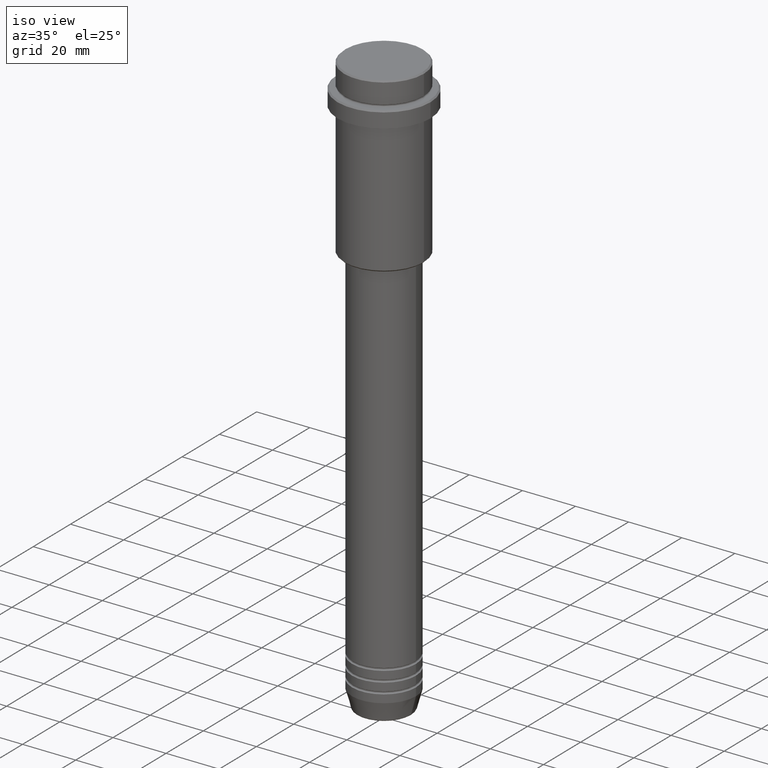
[diagram: clean part render]
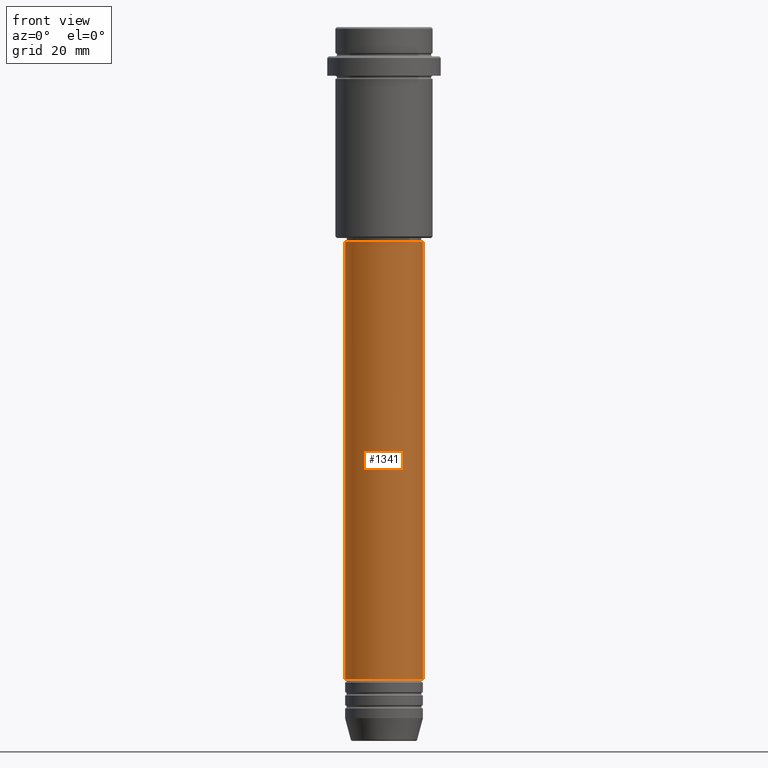
[diagram: tour spotlight — one face highlighted and labeled with its STEP entity id]
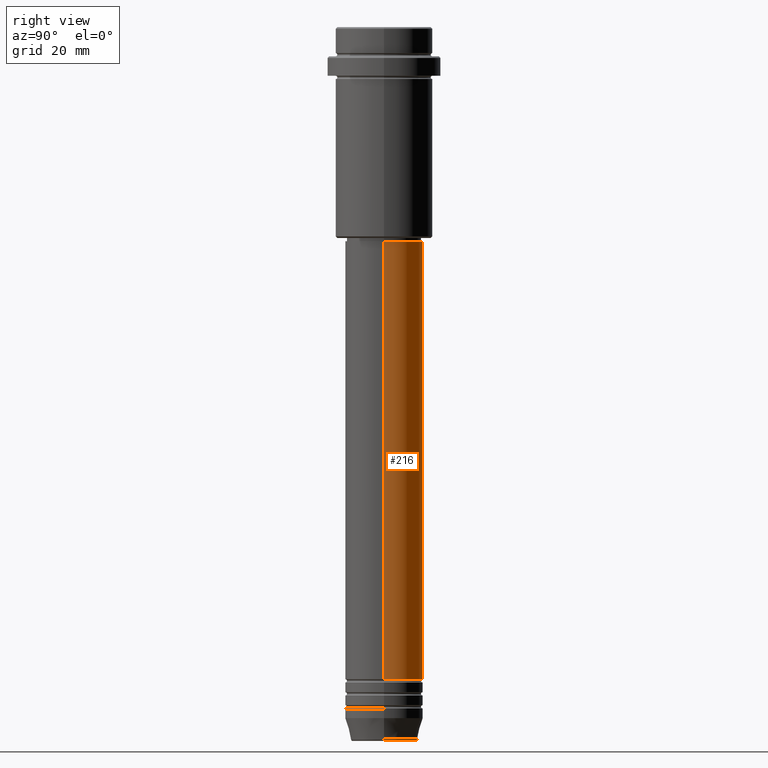
[diagram: tour spotlight — one face highlighted and labeled with its STEP entity id]
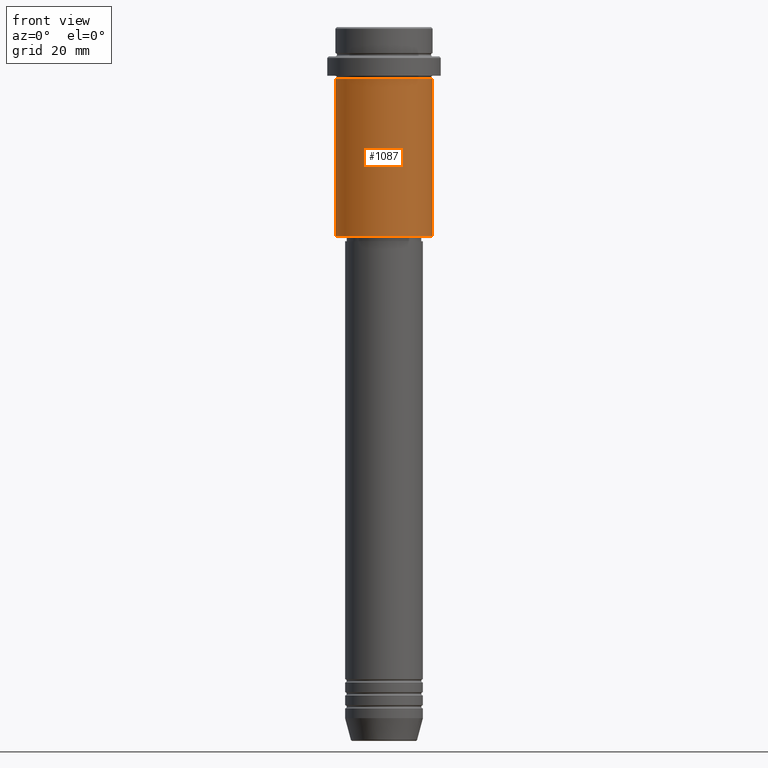
[diagram: tour spotlight — one face highlighted and labeled with its STEP entity id]
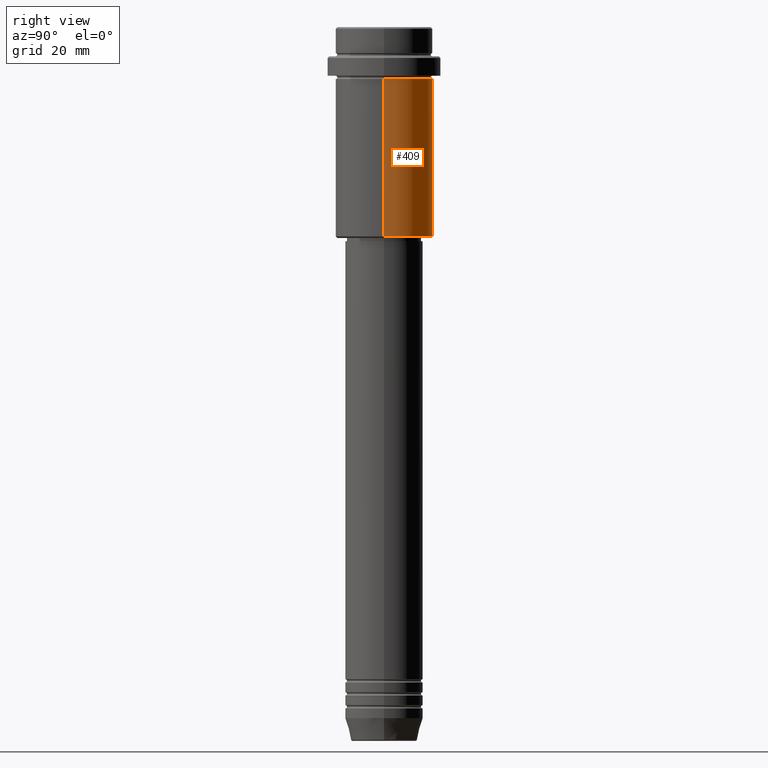
[diagram: tour spotlight — one face highlighted and labeled with its STEP entity id]
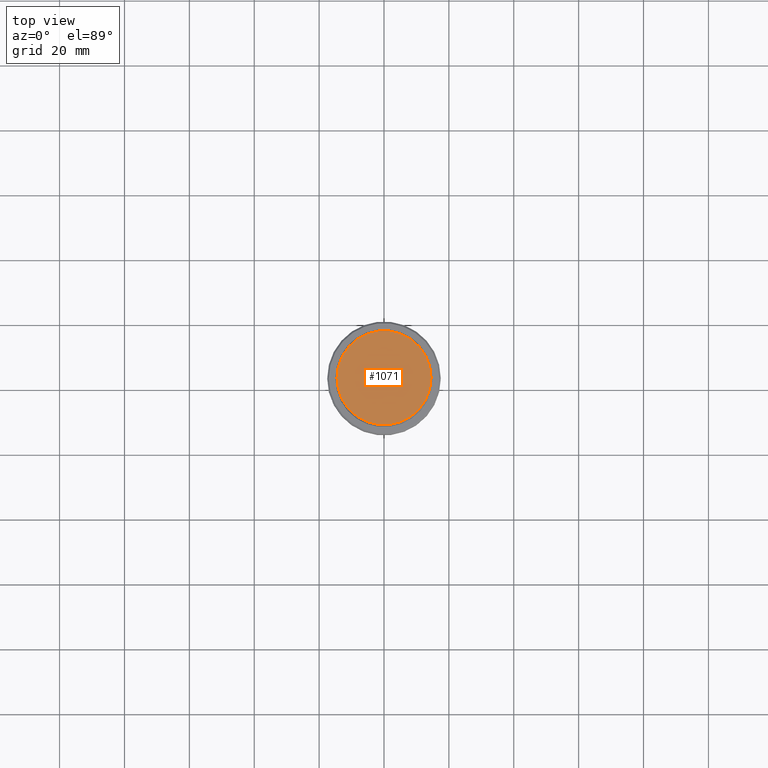
[diagram: tour spotlight — one face highlighted and labeled with its STEP entity id]
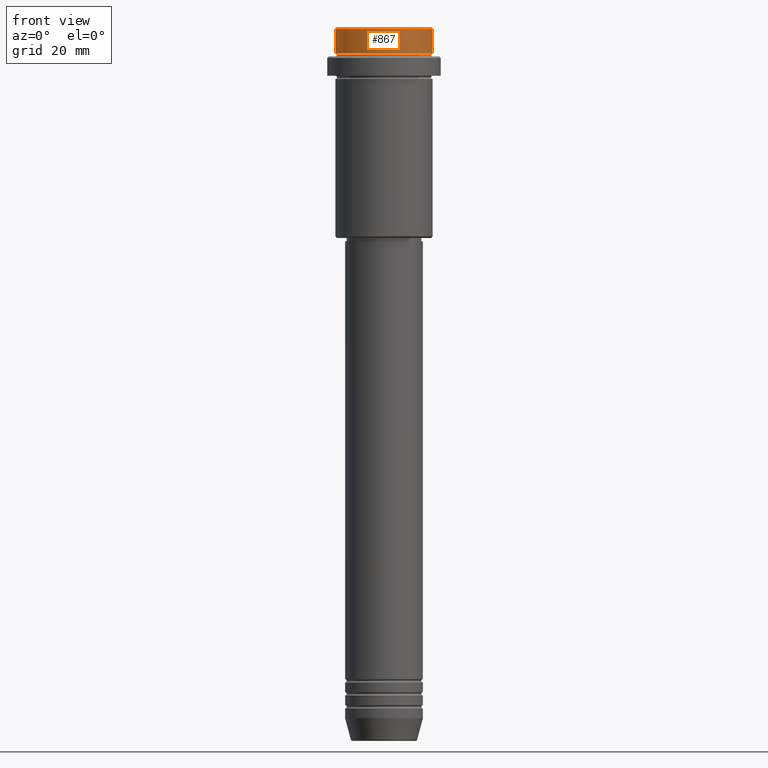
[diagram: tour spotlight — one face highlighted and labeled with its STEP entity id]
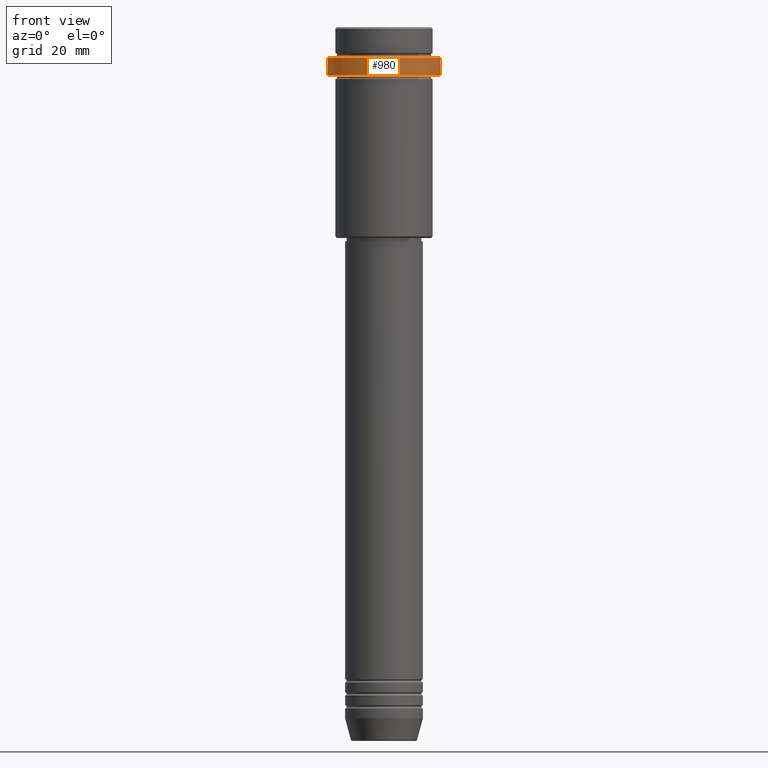
[diagram: tour spotlight — one face highlighted and labeled with its STEP entity id]
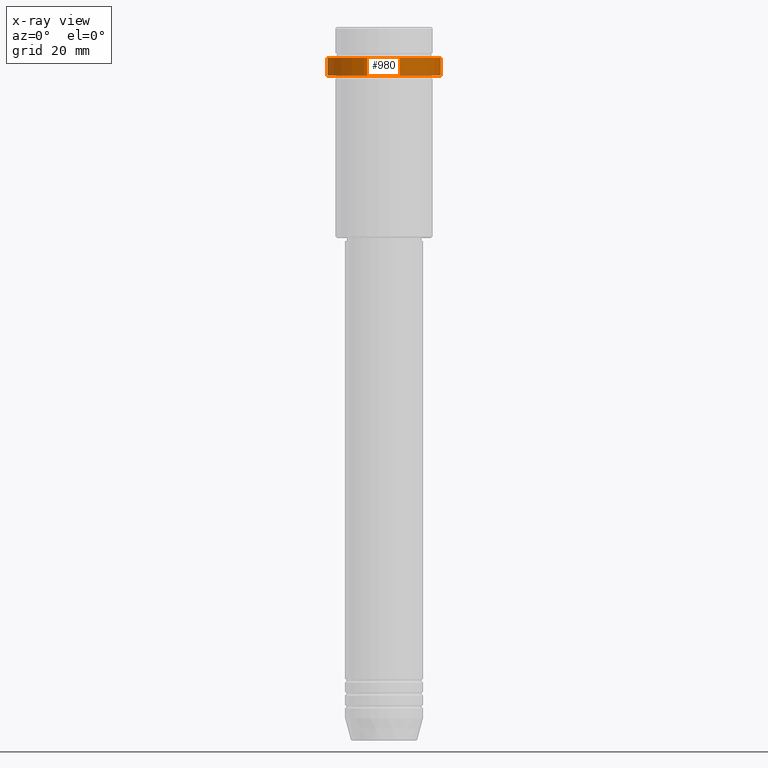
[diagram: x-ray of the same camera — body ghosted, this tour face saturated]
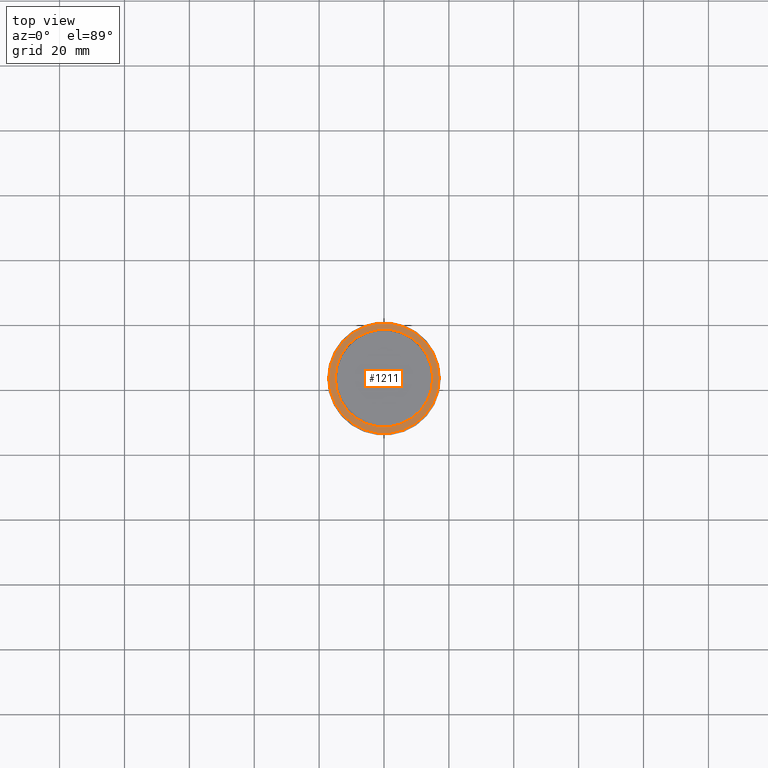
[diagram: tour spotlight — one face highlighted and labeled with its STEP entity id]
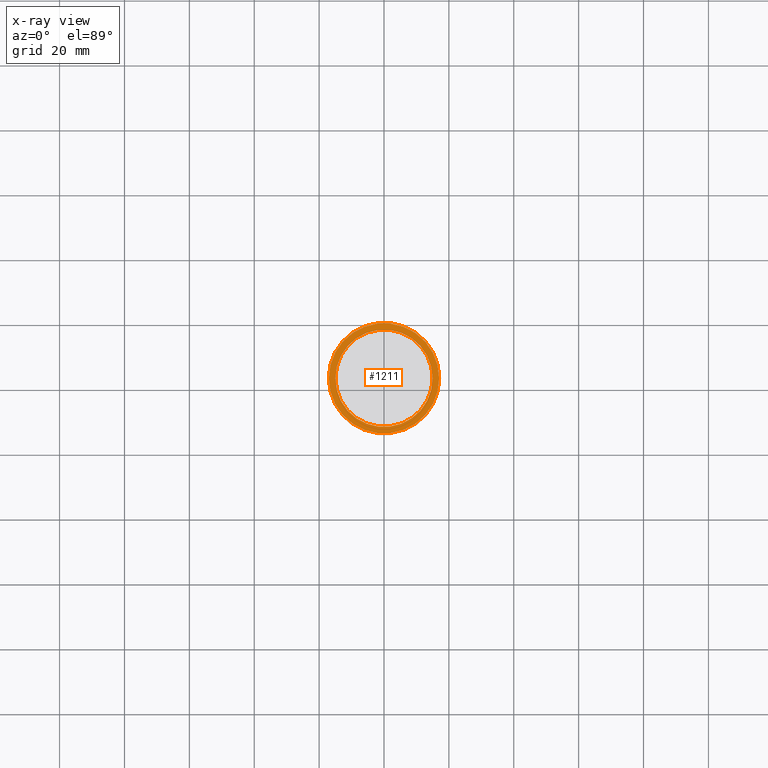
[diagram: x-ray of the same camera — body ghosted, this tour face saturated]
A machine part: a face-by-face anatomy tour. The part has 52 B-rep faces; the first image is the clean iso view, then the 8 largest visible faces are spotlighted one at a time (largest first), each with its STEP entity span.

Face 1 — front view, entity #1341. In plain terms, the highlighted cylindrical surface (partial cylindrical patch) has radius 12 mm, axis along (-0, -0, 1).
Definition (entity closure, byte-faithful):
#27 = VECTOR ( 'NONE', #661, 1000.000000000000000 ) ;
#45 = VERTEX_POINT ( 'NONE', #463 ) ;
#224 = CIRCLE ( 'NONE', #1009, 11.99999999999999822 ) ;
#270 = VERTEX_POINT ( 'NONE', #1295 ) ;
#314 = EDGE_CURVE ( 'NONE', #1225, #270, #756, .T. ) ;
#368 = FACE_OUTER_BOUND ( 'NONE', #827, .T. ) ;
#375 = DIRECTION ( 'NONE',  ( -0.000000000000000000, -0.000000000000000000, 1.000000000000000000 ) ) ;
#439 = CARTESIAN_POINT ( 'NONE',  ( 11.99999999999999822, 0.000000000000000000, -66.00000000000000000 ) ) ;
#443 = ORIENTED_EDGE ( 'NONE', *, *, #622, .T. ) ;
#463 = CARTESIAN_POINT ( 'NONE',  ( 12.00000000000000000, 0.000000000000000000, -200.9999999999999147 ) ) ;
#481 = DIRECTION ( 'NONE',  ( -0.000000000000000000, -0.000000000000000000, 1.000000000000000000 ) ) ;
#507 = DIRECTION ( 'NONE',  ( 1.000000000000000000, 0.000000000000000000, 0.000000000000000000 ) ) ;
#529 = VECTOR ( 'NONE', #1241, 1000.000000000000000 ) ;
#622 = EDGE_CURVE ( 'NONE', #45, #1257, #910, .T. ) ;
#661 = DIRECTION ( 'NONE',  ( -0.000000000000000000, -0.000000000000000000, 1.000000000000000000 ) ) ;
#667 = EDGE_CURVE ( 'NONE', #1225, #45, #1103, .T. ) ;
#722 = ORIENTED_EDGE ( 'NONE', *, *, #667, .T. ) ;
#756 = LINE ( 'NONE', #1190, #27 ) ;
#819 = AXIS2_PLACEMENT_3D ( 'NONE', #1378, #481, #507 ) ;
#827 = EDGE_LOOP ( 'NONE', ( #1358, #722, #443, #964 ) ) ;
#885 = DIRECTION ( 'NONE',  ( 1.000000000000000000, 0.000000000000000000, 0.000000000000000000 ) ) ;
#910 = LINE ( 'NONE', #1230, #529 ) ;
#964 = ORIENTED_EDGE ( 'NONE', *, *, #1283, .F. ) ;
#1003 = CARTESIAN_POINT ( 'NONE',  ( -12.00000000000000000, 1.469576158976823947E-15, -200.9999999999999147 ) ) ;
#1009 = AXIS2_PLACEMENT_3D ( 'NONE', #1010, #1112, #885 ) ;
#1010 = CARTESIAN_POINT ( 'NONE',  ( 0.000000000000000000, 0.000000000000000000, -66.00000000000000000 ) ) ;
#1103 = CIRCLE ( 'NONE', #819, 12.00000000000000000 ) ;
#1109 = AXIS2_PLACEMENT_3D ( 'NONE', #1136, #375, #1245 ) ;
#1112 = DIRECTION ( 'NONE',  ( -0.000000000000000000, -0.000000000000000000, 1.000000000000000000 ) ) ;
#1136 = CARTESIAN_POINT ( 'NONE',  ( 0.000000000000000000, 0.000000000000000000, 0.000000000000000000 ) ) ;
#1190 = CARTESIAN_POINT ( 'NONE',  ( -12.00000000000000000, 1.469576158976823947E-15, 0.000000000000000000 ) ) ;
#1225 = VERTEX_POINT ( 'NONE', #1003 ) ;
#1230 = CARTESIAN_POINT ( 'NONE',  ( 12.00000000000000000, 0.000000000000000000, 0.000000000000000000 ) ) ;
#1241 = DIRECTION ( 'NONE',  ( -0.000000000000000000, -0.000000000000000000, 1.000000000000000000 ) ) ;
#1245 = DIRECTION ( 'NONE',  ( 1.000000000000000000, 0.000000000000000000, 0.000000000000000000 ) ) ;
#1257 = VERTEX_POINT ( 'NONE', #439 ) ;
#1283 = EDGE_CURVE ( 'NONE', #270, #1257, #224, .T. ) ;
#1295 = CARTESIAN_POINT ( 'NONE',  ( -11.99999999999999822, 1.469576158976823750E-15, -66.00000000000000000 ) ) ;
#1341 = ADVANCED_FACE ( 'NONE', ( #368 ), #1364, .T. ) ;
#1358 = ORIENTED_EDGE ( 'NONE', *, *, #314, .F. ) ;
#1364 = CYLINDRICAL_SURFACE ( 'NONE', #1109, 12.00000000000000000 ) ;
#1378 = CARTESIAN_POINT ( 'NONE',  ( 0.000000000000000000, 0.000000000000000000, -200.9999999999999147 ) ) ;

Face 2 — right view, entity #216. In plain terms, the highlighted cylindrical surface (partial cylindrical patch) has radius 12 mm, axis along (-0, -0, 1).
Definition (entity closure, byte-faithful):
#27 = VECTOR ( 'NONE', #661, 1000.000000000000000 ) ;
#30 = DIRECTION ( 'NONE',  ( -0.000000000000000000, -0.000000000000000000, 1.000000000000000000 ) ) ;
#45 = VERTEX_POINT ( 'NONE', #463 ) ;
#141 = CIRCLE ( 'NONE', #165, 12.00000000000000000 ) ;
#165 = AXIS2_PLACEMENT_3D ( 'NONE', #1362, #366, #1357 ) ;
#216 = ADVANCED_FACE ( 'NONE', ( #1338 ), #558, .T. ) ;
#243 = ORIENTED_EDGE ( 'NONE', *, *, #314, .T. ) ;
#261 = AXIS2_PLACEMENT_3D ( 'NONE', #350, #30, #698 ) ;
#270 = VERTEX_POINT ( 'NONE', #1295 ) ;
#314 = EDGE_CURVE ( 'NONE', #1225, #270, #756, .T. ) ;
#350 = CARTESIAN_POINT ( 'NONE',  ( 0.000000000000000000, 0.000000000000000000, -66.00000000000000000 ) ) ;
#366 = DIRECTION ( 'NONE',  ( -0.000000000000000000, -0.000000000000000000, 1.000000000000000000 ) ) ;
#439 = CARTESIAN_POINT ( 'NONE',  ( 11.99999999999999822, 0.000000000000000000, -66.00000000000000000 ) ) ;
#463 = CARTESIAN_POINT ( 'NONE',  ( 12.00000000000000000, 0.000000000000000000, -200.9999999999999147 ) ) ;
#515 = EDGE_LOOP ( 'NONE', ( #564, #243, #1380, #1131 ) ) ;
#529 = VECTOR ( 'NONE', #1241, 1000.000000000000000 ) ;
#550 = DIRECTION ( 'NONE',  ( 1.000000000000000000, 0.000000000000000000, 0.000000000000000000 ) ) ;
#558 = CYLINDRICAL_SURFACE ( 'NONE', #1142, 12.00000000000000000 ) ;
#564 = ORIENTED_EDGE ( 'NONE', *, *, #809, .T. ) ;
#622 = EDGE_CURVE ( 'NONE', #45, #1257, #910, .T. ) ;
#661 = DIRECTION ( 'NONE',  ( -0.000000000000000000, -0.000000000000000000, 1.000000000000000000 ) ) ;
#698 = DIRECTION ( 'NONE',  ( 1.000000000000000000, 0.000000000000000000, 0.000000000000000000 ) ) ;
#756 = LINE ( 'NONE', #1190, #27 ) ;
#809 = EDGE_CURVE ( 'NONE', #45, #1225, #141, .T. ) ;
#910 = LINE ( 'NONE', #1230, #529 ) ;
#987 = CARTESIAN_POINT ( 'NONE',  ( 0.000000000000000000, 0.000000000000000000, 0.000000000000000000 ) ) ;
#1003 = CARTESIAN_POINT ( 'NONE',  ( -12.00000000000000000, 1.469576158976823947E-15, -200.9999999999999147 ) ) ;
#1131 = ORIENTED_EDGE ( 'NONE', *, *, #622, .F. ) ;
#1142 = AXIS2_PLACEMENT_3D ( 'NONE', #987, #1330, #550 ) ;
#1190 = CARTESIAN_POINT ( 'NONE',  ( -12.00000000000000000, 1.469576158976823947E-15, 0.000000000000000000 ) ) ;
#1225 = VERTEX_POINT ( 'NONE', #1003 ) ;
#1230 = CARTESIAN_POINT ( 'NONE',  ( 12.00000000000000000, 0.000000000000000000, 0.000000000000000000 ) ) ;
#1238 = CIRCLE ( 'NONE', #261, 11.99999999999999822 ) ;
#1241 = DIRECTION ( 'NONE',  ( -0.000000000000000000, -0.000000000000000000, 1.000000000000000000 ) ) ;
#1257 = VERTEX_POINT ( 'NONE', #439 ) ;
#1295 = CARTESIAN_POINT ( 'NONE',  ( -11.99999999999999822, 1.469576158976823750E-15, -66.00000000000000000 ) ) ;
#1316 = EDGE_CURVE ( 'NONE', #1257, #270, #1238, .T. ) ;
#1330 = DIRECTION ( 'NONE',  ( -0.000000000000000000, -0.000000000000000000, 1.000000000000000000 ) ) ;
#1338 = FACE_OUTER_BOUND ( 'NONE', #515, .T. ) ;
#1357 = DIRECTION ( 'NONE',  ( 1.000000000000000000, 0.000000000000000000, 0.000000000000000000 ) ) ;
#1362 = CARTESIAN_POINT ( 'NONE',  ( 0.000000000000000000, 0.000000000000000000, -200.9999999999999147 ) ) ;
#1380 = ORIENTED_EDGE ( 'NONE', *, *, #1316, .F. ) ;

Face 3 — front view, entity #1087. In plain terms, the highlighted cylindrical surface (partial cylindrical patch) has radius 15 mm, axis along (-0, -0, 1).
Definition (entity closure, byte-faithful):
#7 = EDGE_CURVE ( 'NONE', #1001, #1274, #450, .T. ) ;
#98 = CARTESIAN_POINT ( 'NONE',  ( -15.00000000000000000, 1.836970198721029589E-15, 0.000000000000000000 ) ) ;
#125 = AXIS2_PLACEMENT_3D ( 'NONE', #1328, #685, #337 ) ;
#142 = CARTESIAN_POINT ( 'NONE',  ( 15.00000000000000000, 0.000000000000000000, -64.49999999999995737 ) ) ;
#235 = ORIENTED_EDGE ( 'NONE', *, *, #1008, .T. ) ;
#275 = AXIS2_PLACEMENT_3D ( 'NONE', #642, #435, #540 ) ;
#305 = CARTESIAN_POINT ( 'NONE',  ( 15.00000000000000178, 0.000000000000000000, -16.00000000000000000 ) ) ;
#337 = DIRECTION ( 'NONE',  ( -1.000000000000000000, 0.000000000000000000, 0.000000000000000000 ) ) ;
#367 = EDGE_CURVE ( 'NONE', #1274, #1079, #1191, .T. ) ;
#403 = AXIS2_PLACEMENT_3D ( 'NONE', #880, #567, #971 ) ;
#435 = DIRECTION ( 'NONE',  ( -0.000000000000000000, -0.000000000000000000, 1.000000000000000000 ) ) ;
#450 = LINE ( 'NONE', #98, #957 ) ;
#538 = DIRECTION ( 'NONE',  ( -0.000000000000000000, -0.000000000000000000, 1.000000000000000000 ) ) ;
#540 = DIRECTION ( 'NONE',  ( 1.000000000000000000, 0.000000000000000000, 0.000000000000000000 ) ) ;
#567 = DIRECTION ( 'NONE',  ( -0.000000000000000000, -0.000000000000000000, 1.000000000000000000 ) ) ;
#642 = CARTESIAN_POINT ( 'NONE',  ( 0.000000000000000000, 0.000000000000000000, 0.000000000000000000 ) ) ;
#664 = FACE_OUTER_BOUND ( 'NONE', #946, .T. ) ;
#685 = DIRECTION ( 'NONE',  ( -0.000000000000000000, -0.000000000000000000, 1.000000000000000000 ) ) ;
#725 = ORIENTED_EDGE ( 'NONE', *, *, #7, .F. ) ;
#758 = VERTEX_POINT ( 'NONE', #142 ) ;
#880 = CARTESIAN_POINT ( 'NONE',  ( 0.000000000000000000, 0.000000000000000000, -16.00000000000000000 ) ) ;
#884 = ORIENTED_EDGE ( 'NONE', *, *, #367, .F. ) ;
#916 = VECTOR ( 'NONE', #1381, 1000.000000000000000 ) ;
#946 = EDGE_LOOP ( 'NONE', ( #725, #1198, #235, #884 ) ) ;
#957 = VECTOR ( 'NONE', #538, 1000.000000000000000 ) ;
#963 = CYLINDRICAL_SURFACE ( 'NONE', #275, 15.00000000000000000 ) ;
#971 = DIRECTION ( 'NONE',  ( 1.000000000000000000, 0.000000000000000000, 0.000000000000000000 ) ) ;
#1001 = VERTEX_POINT ( 'NONE', #1163 ) ;
#1008 = EDGE_CURVE ( 'NONE', #758, #1079, #1043, .T. ) ;
#1043 = LINE ( 'NONE', #1048, #916 ) ;
#1048 = CARTESIAN_POINT ( 'NONE',  ( 15.00000000000000000, 0.000000000000000000, 0.000000000000000000 ) ) ;
#1079 = VERTEX_POINT ( 'NONE', #305 ) ;
#1087 = ADVANCED_FACE ( 'NONE', ( #664 ), #963, .T. ) ;
#1118 = CARTESIAN_POINT ( 'NONE',  ( -15.00000000000000355, 1.836970198721029983E-15, -16.00000000000000000 ) ) ;
#1163 = CARTESIAN_POINT ( 'NONE',  ( -15.00000000000000000, 1.836970198721029589E-15, -64.49999999999995737 ) ) ;
#1191 = CIRCLE ( 'NONE', #403, 15.00000000000000178 ) ;
#1198 = ORIENTED_EDGE ( 'NONE', *, *, #1314, .T. ) ;
#1261 = CIRCLE ( 'NONE', #125, 15.00000000000000000 ) ;
#1274 = VERTEX_POINT ( 'NONE', #1118 ) ;
#1314 = EDGE_CURVE ( 'NONE', #1001, #758, #1261, .T. ) ;
#1328 = CARTESIAN_POINT ( 'NONE',  ( 0.000000000000000000, 0.000000000000000000, -64.49999999999995737 ) ) ;
#1381 = DIRECTION ( 'NONE',  ( -0.000000000000000000, -0.000000000000000000, 1.000000000000000000 ) ) ;

Face 4 — right view, entity #409. In plain terms, the highlighted cylindrical surface (partial cylindrical patch) has radius 15 mm, axis along (-0, -0, 1).
Definition (entity closure, byte-faithful):
#7 = EDGE_CURVE ( 'NONE', #1001, #1274, #450, .T. ) ;
#42 = EDGE_CURVE ( 'NONE', #1079, #1274, #219, .T. ) ;
#98 = CARTESIAN_POINT ( 'NONE',  ( -15.00000000000000000, 1.836970198721029589E-15, 0.000000000000000000 ) ) ;
#106 = ORIENTED_EDGE ( 'NONE', *, *, #1175, .T. ) ;
#138 = ORIENTED_EDGE ( 'NONE', *, *, #1008, .F. ) ;
#142 = CARTESIAN_POINT ( 'NONE',  ( 15.00000000000000000, 0.000000000000000000, -64.49999999999995737 ) ) ;
#160 = AXIS2_PLACEMENT_3D ( 'NONE', #468, #282, #913 ) ;
#219 = CIRCLE ( 'NONE', #160, 15.00000000000000178 ) ;
#230 = CARTESIAN_POINT ( 'NONE',  ( 0.000000000000000000, 0.000000000000000000, 0.000000000000000000 ) ) ;
#271 = AXIS2_PLACEMENT_3D ( 'NONE', #230, #1083, #892 ) ;
#282 = DIRECTION ( 'NONE',  ( -0.000000000000000000, -0.000000000000000000, 1.000000000000000000 ) ) ;
#305 = CARTESIAN_POINT ( 'NONE',  ( 15.00000000000000178, 0.000000000000000000, -16.00000000000000000 ) ) ;
#409 = ADVANCED_FACE ( 'NONE', ( #998 ), #445, .T. ) ;
#414 = ORIENTED_EDGE ( 'NONE', *, *, #7, .T. ) ;
#445 = CYLINDRICAL_SURFACE ( 'NONE', #271, 15.00000000000000000 ) ;
#450 = LINE ( 'NONE', #98, #957 ) ;
#468 = CARTESIAN_POINT ( 'NONE',  ( 0.000000000000000000, 0.000000000000000000, -16.00000000000000000 ) ) ;
#517 = DIRECTION ( 'NONE',  ( -1.000000000000000000, 0.000000000000000000, 0.000000000000000000 ) ) ;
#538 = DIRECTION ( 'NONE',  ( -0.000000000000000000, -0.000000000000000000, 1.000000000000000000 ) ) ;
#554 = EDGE_LOOP ( 'NONE', ( #106, #414, #811, #138 ) ) ;
#758 = VERTEX_POINT ( 'NONE', #142 ) ;
#811 = ORIENTED_EDGE ( 'NONE', *, *, #42, .F. ) ;
#821 = CIRCLE ( 'NONE', #1218, 15.00000000000000000 ) ;
#872 = CARTESIAN_POINT ( 'NONE',  ( 0.000000000000000000, 0.000000000000000000, -64.49999999999995737 ) ) ;
#892 = DIRECTION ( 'NONE',  ( 1.000000000000000000, 0.000000000000000000, 0.000000000000000000 ) ) ;
#913 = DIRECTION ( 'NONE',  ( 1.000000000000000000, 0.000000000000000000, 0.000000000000000000 ) ) ;
#916 = VECTOR ( 'NONE', #1381, 1000.000000000000000 ) ;
#957 = VECTOR ( 'NONE', #538, 1000.000000000000000 ) ;
#998 = FACE_OUTER_BOUND ( 'NONE', #554, .T. ) ;
#1001 = VERTEX_POINT ( 'NONE', #1163 ) ;
#1008 = EDGE_CURVE ( 'NONE', #758, #1079, #1043, .T. ) ;
#1043 = LINE ( 'NONE', #1048, #916 ) ;
#1048 = CARTESIAN_POINT ( 'NONE',  ( 15.00000000000000000, 0.000000000000000000, 0.000000000000000000 ) ) ;
#1079 = VERTEX_POINT ( 'NONE', #305 ) ;
#1083 = DIRECTION ( 'NONE',  ( -0.000000000000000000, -0.000000000000000000, 1.000000000000000000 ) ) ;
#1118 = CARTESIAN_POINT ( 'NONE',  ( -15.00000000000000355, 1.836970198721029983E-15, -16.00000000000000000 ) ) ;
#1163 = CARTESIAN_POINT ( 'NONE',  ( -15.00000000000000000, 1.836970198721029589E-15, -64.49999999999995737 ) ) ;
#1175 = EDGE_CURVE ( 'NONE', #758, #1001, #821, .T. ) ;
#1189 = DIRECTION ( 'NONE',  ( -0.000000000000000000, -0.000000000000000000, 1.000000000000000000 ) ) ;
#1218 = AXIS2_PLACEMENT_3D ( 'NONE', #872, #1189, #517 ) ;
#1274 = VERTEX_POINT ( 'NONE', #1118 ) ;
#1381 = DIRECTION ( 'NONE',  ( -0.000000000000000000, -0.000000000000000000, 1.000000000000000000 ) ) ;

Face 5 — top view, entity #1071. In plain terms, the highlighted planar face has unit normal (0, -0, 1).
Definition (entity closure, byte-faithful):
#2 = DIRECTION ( 'NONE',  ( 1.000000000000000000, 0.000000000000000000, 0.000000000000000000 ) ) ;
#5 = CIRCLE ( 'NONE', #738, 14.49999999999998401 ) ;
#12 = PLANE ( 'NONE',  #472 ) ;
#148 = CARTESIAN_POINT ( 'NONE',  ( 14.49999999999998401, 1.806354028742345013E-15, 0.000000000000000000 ) ) ;
#149 = DIRECTION ( 'NONE',  ( 1.000000000000000000, 0.000000000000000000, 0.000000000000000000 ) ) ;
#158 = DIRECTION ( 'NONE',  ( 1.000000000000000000, 0.000000000000000000, 0.000000000000000000 ) ) ;
#264 = ORIENTED_EDGE ( 'NONE', *, *, #687, .T. ) ;
#278 = DIRECTION ( 'NONE',  ( -0.000000000000000000, -0.000000000000000000, 1.000000000000000000 ) ) ;
#330 = DIRECTION ( 'NONE',  ( -0.000000000000000000, -0.000000000000000000, 1.000000000000000000 ) ) ;
#395 = FACE_OUTER_BOUND ( 'NONE', #898, .T. ) ;
#405 = AXIS2_PLACEMENT_3D ( 'NONE', #1382, #278, #158 ) ;
#454 = CIRCLE ( 'NONE', #405, 14.49999999999998401 ) ;
#472 = AXIS2_PLACEMENT_3D ( 'NONE', #1197, #976, #2 ) ;
#592 = EDGE_CURVE ( 'NONE', #1329, #887, #5, .T. ) ;
#639 = CARTESIAN_POINT ( 'NONE',  ( -14.49999999999998401, 0.000000000000000000, 0.000000000000000000 ) ) ;
#687 = EDGE_CURVE ( 'NONE', #887, #1329, #454, .T. ) ;
#738 = AXIS2_PLACEMENT_3D ( 'NONE', #1319, #330, #149 ) ;
#741 = ORIENTED_EDGE ( 'NONE', *, *, #592, .T. ) ;
#887 = VERTEX_POINT ( 'NONE', #639 ) ;
#898 = EDGE_LOOP ( 'NONE', ( #264, #741 ) ) ;
#976 = DIRECTION ( 'NONE',  ( 0.000000000000000000, -0.000000000000000000, 1.000000000000000000 ) ) ;
#1071 = ADVANCED_FACE ( 'NONE', ( #395 ), #12, .T. ) ;
#1197 = CARTESIAN_POINT ( 'NONE',  ( 0.000000000000000000, 0.000000000000000000, 0.000000000000000000 ) ) ;
#1319 = CARTESIAN_POINT ( 'NONE',  ( 0.000000000000000000, 0.000000000000000000, 0.000000000000000000 ) ) ;
#1329 = VERTEX_POINT ( 'NONE', #148 ) ;
#1382 = CARTESIAN_POINT ( 'NONE',  ( 0.000000000000000000, 0.000000000000000000, 0.000000000000000000 ) ) ;

Face 6 — front view, entity #867. In plain terms, the highlighted cylindrical surface (partial cylindrical patch) has radius 15 mm, axis along (-0, -0, 1).
Definition (entity closure, byte-faithful):
#14 = EDGE_CURVE ( 'NONE', #654, #928, #868, .T. ) ;
#26 = AXIS2_PLACEMENT_3D ( 'NONE', #442, #579, #889 ) ;
#87 = CYLINDRICAL_SURFACE ( 'NONE', #1192, 15.00000000000000000 ) ;
#207 = DIRECTION ( 'NONE',  ( 1.000000000000000000, 0.000000000000000000, 0.000000000000000000 ) ) ;
#251 = CARTESIAN_POINT ( 'NONE',  ( -15.00000000000000000, 1.836970198721029589E-15, 0.000000000000000000 ) ) ;
#294 = ORIENTED_EDGE ( 'NONE', *, *, #1416, .T. ) ;
#307 = DIRECTION ( 'NONE',  ( 1.000000000000000000, 0.000000000000000000, 0.000000000000000000 ) ) ;
#345 = VECTOR ( 'NONE', #822, 1000.000000000000000 ) ;
#355 = VERTEX_POINT ( 'NONE', #549 ) ;
#361 = EDGE_CURVE ( 'NONE', #814, #928, #788, .T. ) ;
#436 = EDGE_LOOP ( 'NONE', ( #975, #513, #294, #1059 ) ) ;
#442 = CARTESIAN_POINT ( 'NONE',  ( 0.000000000000000000, 0.000000000000000000, -0.5000000000000108802 ) ) ;
#513 = ORIENTED_EDGE ( 'NONE', *, *, #716, .T. ) ;
#541 = DIRECTION ( 'NONE',  ( -0.000000000000000000, -0.000000000000000000, 1.000000000000000000 ) ) ;
#549 = CARTESIAN_POINT ( 'NONE',  ( 15.00000000000000000, 0.000000000000000000, -7.999999999999998224 ) ) ;
#559 = VECTOR ( 'NONE', #541, 1000.000000000000000 ) ;
#574 = CARTESIAN_POINT ( 'NONE',  ( 15.00000000000000000, 0.000000000000000000, -0.5000000000000108802 ) ) ;
#579 = DIRECTION ( 'NONE',  ( 0.000000000000000000, 0.000000000000000000, -1.000000000000000000 ) ) ;
#654 = VERTEX_POINT ( 'NONE', #574 ) ;
#716 = EDGE_CURVE ( 'NONE', #814, #355, #842, .T. ) ;
#788 = LINE ( 'NONE', #251, #559 ) ;
#795 = CARTESIAN_POINT ( 'NONE',  ( -15.00000000000000000, 1.836970198721029589E-15, -0.5000000000000108802 ) ) ;
#814 = VERTEX_POINT ( 'NONE', #1249 ) ;
#822 = DIRECTION ( 'NONE',  ( -0.000000000000000000, -0.000000000000000000, 1.000000000000000000 ) ) ;
#842 = CIRCLE ( 'NONE', #1215, 15.00000000000000000 ) ;
#864 = CARTESIAN_POINT ( 'NONE',  ( 0.000000000000000000, 0.000000000000000000, 0.000000000000000000 ) ) ;
#867 = ADVANCED_FACE ( 'NONE', ( #1281 ), #87, .T. ) ;
#868 = CIRCLE ( 'NONE', #26, 15.00000000000000000 ) ;
#889 = DIRECTION ( 'NONE',  ( 1.000000000000000000, 0.000000000000000000, 0.000000000000000000 ) ) ;
#928 = VERTEX_POINT ( 'NONE', #795 ) ;
#975 = ORIENTED_EDGE ( 'NONE', *, *, #361, .F. ) ;
#1059 = ORIENTED_EDGE ( 'NONE', *, *, #14, .T. ) ;
#1192 = AXIS2_PLACEMENT_3D ( 'NONE', #864, #1294, #307 ) ;
#1215 = AXIS2_PLACEMENT_3D ( 'NONE', #1376, #1308, #207 ) ;
#1249 = CARTESIAN_POINT ( 'NONE',  ( -15.00000000000000000, 1.836970198721029589E-15, -7.999999999999998224 ) ) ;
#1281 = FACE_OUTER_BOUND ( 'NONE', #436, .T. ) ;
#1294 = DIRECTION ( 'NONE',  ( -0.000000000000000000, -0.000000000000000000, 1.000000000000000000 ) ) ;
#1308 = DIRECTION ( 'NONE',  ( -0.000000000000000000, -0.000000000000000000, 1.000000000000000000 ) ) ;
#1370 = LINE ( 'NONE', #1385, #345 ) ;
#1376 = CARTESIAN_POINT ( 'NONE',  ( 0.000000000000000000, 0.000000000000000000, -7.999999999999998224 ) ) ;
#1385 = CARTESIAN_POINT ( 'NONE',  ( 15.00000000000000000, 0.000000000000000000, 0.000000000000000000 ) ) ;
#1416 = EDGE_CURVE ( 'NONE', #355, #654, #1370, .T. ) ;

Face 7 — front view, entity #980. An x-ray twin of the same camera follows (body ghosted, this face saturated) — the face is partly hidden behind the body. In plain terms, the highlighted cylindrical surface (partial cylindrical patch) has radius 17.5 mm, axis along (-0, -0, 1).
Definition (entity closure, byte-faithful):
#54 = EDGE_CURVE ( 'NONE', #624, #376, #890, .T. ) ;
#86 = LINE ( 'NONE', #965, #118 ) ;
#111 = EDGE_CURVE ( 'NONE', #1373, #376, #86, .T. ) ;
#113 = VERTEX_POINT ( 'NONE', #635 ) ;
#118 = VECTOR ( 'NONE', #185, 1000.000000000000000 ) ;
#154 = EDGE_CURVE ( 'NONE', #1373, #113, #840, .T. ) ;
#172 = CARTESIAN_POINT ( 'NONE',  ( -17.50000000000000000, 2.143131898507868248E-15, -15.00000000000000178 ) ) ;
#185 = DIRECTION ( 'NONE',  ( -0.000000000000000000, -0.000000000000000000, 1.000000000000000000 ) ) ;
#276 = CYLINDRICAL_SURFACE ( 'NONE', #1026, 17.50000000000000000 ) ;
#281 = DIRECTION ( 'NONE',  ( 1.000000000000000000, 0.000000000000000000, 0.000000000000000000 ) ) ;
#313 = DIRECTION ( 'NONE',  ( 1.000000000000000000, 0.000000000000000000, 0.000000000000000000 ) ) ;
#376 = VERTEX_POINT ( 'NONE', #985 ) ;
#379 = CARTESIAN_POINT ( 'NONE',  ( 0.000000000000000000, 0.000000000000000000, 0.000000000000000000 ) ) ;
#384 = DIRECTION ( 'NONE',  ( -0.000000000000000000, -0.000000000000000000, 1.000000000000000000 ) ) ;
#518 = CARTESIAN_POINT ( 'NONE',  ( 17.50000000000000000, 0.000000000000000000, -9.500000000000028422 ) ) ;
#608 = ORIENTED_EDGE ( 'NONE', *, *, #903, .T. ) ;
#624 = VERTEX_POINT ( 'NONE', #518 ) ;
#635 = CARTESIAN_POINT ( 'NONE',  ( 17.50000000000000000, 0.000000000000000000, -15.00000000000000178 ) ) ;
#651 = CARTESIAN_POINT ( 'NONE',  ( 0.000000000000000000, 0.000000000000000000, -15.00000000000000178 ) ) ;
#717 = ORIENTED_EDGE ( 'NONE', *, *, #111, .F. ) ;
#728 = EDGE_LOOP ( 'NONE', ( #717, #1203, #608, #1111 ) ) ;
#742 = DIRECTION ( 'NONE',  ( 1.000000000000000000, 0.000000000000000000, 0.000000000000000000 ) ) ;
#808 = FACE_OUTER_BOUND ( 'NONE', #728, .T. ) ;
#840 = CIRCLE ( 'NONE', #1022, 17.50000000000000000 ) ;
#890 = CIRCLE ( 'NONE', #1169, 17.50000000000000000 ) ;
#903 = EDGE_CURVE ( 'NONE', #113, #624, #1029, .T. ) ;
#955 = DIRECTION ( 'NONE',  ( 0.000000000000000000, 0.000000000000000000, -1.000000000000000000 ) ) ;
#965 = CARTESIAN_POINT ( 'NONE',  ( -17.50000000000000000, 2.143131898507868248E-15, 0.000000000000000000 ) ) ;
#980 = ADVANCED_FACE ( 'NONE', ( #808 ), #276, .T. ) ;
#985 = CARTESIAN_POINT ( 'NONE',  ( -17.50000000000000000, 2.143131898507868248E-15, -9.500000000000028422 ) ) ;
#1022 = AXIS2_PLACEMENT_3D ( 'NONE', #651, #1307, #313 ) ;
#1026 = AXIS2_PLACEMENT_3D ( 'NONE', #379, #1360, #281 ) ;
#1029 = LINE ( 'NONE', #1154, #1375 ) ;
#1111 = ORIENTED_EDGE ( 'NONE', *, *, #54, .T. ) ;
#1154 = CARTESIAN_POINT ( 'NONE',  ( 17.50000000000000000, 0.000000000000000000, 0.000000000000000000 ) ) ;
#1169 = AXIS2_PLACEMENT_3D ( 'NONE', #1353, #955, #742 ) ;
#1203 = ORIENTED_EDGE ( 'NONE', *, *, #154, .T. ) ;
#1307 = DIRECTION ( 'NONE',  ( -0.000000000000000000, -0.000000000000000000, 1.000000000000000000 ) ) ;
#1353 = CARTESIAN_POINT ( 'NONE',  ( 0.000000000000000000, 0.000000000000000000, -9.500000000000028422 ) ) ;
#1360 = DIRECTION ( 'NONE',  ( -0.000000000000000000, -0.000000000000000000, 1.000000000000000000 ) ) ;
#1373 = VERTEX_POINT ( 'NONE', #172 ) ;
#1375 = VECTOR ( 'NONE', #384, 1000.000000000000000 ) ;

Face 8 — top view, entity #1211. An x-ray twin of the same camera follows (body ghosted, this face saturated) — the face is partly hidden behind the body. In plain terms, the highlighted planar face has unit normal (0, -0, 1).
Definition (entity closure, byte-faithful):
#31 = CIRCLE ( 'NONE', #378, 16.99999999999998579 ) ;
#67 = AXIS2_PLACEMENT_3D ( 'NONE', #1284, #794, #680 ) ;
#92 = FACE_OUTER_BOUND ( 'NONE', #437, .T. ) ;
#93 = VERTEX_POINT ( 'NONE', #949 ) ;
#116 = ORIENTED_EDGE ( 'NONE', *, *, #572, .T. ) ;
#117 = DIRECTION ( 'NONE',  ( 0.000000000000000000, 0.000000000000000000, -1.000000000000000000 ) ) ;
#284 = CARTESIAN_POINT ( 'NONE',  ( 14.99999999999999467, 0.000000000000000000, -9.000000000000001776 ) ) ;
#311 = VERTEX_POINT ( 'NONE', #284 ) ;
#312 = DIRECTION ( 'NONE',  ( 1.000000000000000000, 0.000000000000000000, 0.000000000000000000 ) ) ;
#378 = AXIS2_PLACEMENT_3D ( 'NONE', #706, #1248, #939 ) ;
#430 = AXIS2_PLACEMENT_3D ( 'NONE', #573, #117, #448 ) ;
#437 = EDGE_LOOP ( 'NONE', ( #720, #802 ) ) ;
#448 = DIRECTION ( 'NONE',  ( 1.000000000000000000, 0.000000000000000000, 0.000000000000000000 ) ) ;
#484 = VERTEX_POINT ( 'NONE', #1229 ) ;
#496 = CIRCLE ( 'NONE', #67, 16.99999999999998579 ) ;
#527 = PLANE ( 'NONE',  #1107 ) ;
#530 = EDGE_CURVE ( 'NONE', #484, #93, #496, .T. ) ;
#539 = ORIENTED_EDGE ( 'NONE', *, *, #672, .T. ) ;
#572 = EDGE_CURVE ( 'NONE', #1066, #311, #799, .T. ) ;
#573 = CARTESIAN_POINT ( 'NONE',  ( 0.000000000000000000, 0.000000000000000000, -9.000000000000001776 ) ) ;
#657 = AXIS2_PLACEMENT_3D ( 'NONE', #942, #1039, #1173 ) ;
#672 = EDGE_CURVE ( 'NONE', #311, #1066, #1259, .T. ) ;
#680 = DIRECTION ( 'NONE',  ( 1.000000000000000000, 0.000000000000000000, 0.000000000000000000 ) ) ;
#706 = CARTESIAN_POINT ( 'NONE',  ( 0.000000000000000000, 0.000000000000000000, -9.000000000000001776 ) ) ;
#720 = ORIENTED_EDGE ( 'NONE', *, *, #1013, .T. ) ;
#794 = DIRECTION ( 'NONE',  ( -0.000000000000000000, -0.000000000000000000, 1.000000000000000000 ) ) ;
#799 = CIRCLE ( 'NONE', #430, 14.99999999999999467 ) ;
#802 = ORIENTED_EDGE ( 'NONE', *, *, #530, .T. ) ;
#853 = CARTESIAN_POINT ( 'NONE',  ( 0.000000000000000000, 14.49999999999999467, -9.000000000000001776 ) ) ;
#939 = DIRECTION ( 'NONE',  ( 1.000000000000000000, 0.000000000000000000, 0.000000000000000000 ) ) ;
#942 = CARTESIAN_POINT ( 'NONE',  ( 0.000000000000000000, 0.000000000000000000, -9.000000000000001776 ) ) ;
#947 = CARTESIAN_POINT ( 'NONE',  ( -14.99999999999999467, 1.836970198721029194E-15, -9.000000000000001776 ) ) ;
#949 = CARTESIAN_POINT ( 'NONE',  ( -16.99999999999998579, 0.000000000000000000, -9.000000000000001776 ) ) ;
#1013 = EDGE_CURVE ( 'NONE', #93, #484, #31, .T. ) ;
#1039 = DIRECTION ( 'NONE',  ( 0.000000000000000000, 0.000000000000000000, -1.000000000000000000 ) ) ;
#1066 = VERTEX_POINT ( 'NONE', #947 ) ;
#1107 = AXIS2_PLACEMENT_3D ( 'NONE', #853, #1299, #312 ) ;
#1173 = DIRECTION ( 'NONE',  ( 1.000000000000000000, 0.000000000000000000, 0.000000000000000000 ) ) ;
#1211 = ADVANCED_FACE ( 'NONE', ( #92, #1395 ), #527, .T. ) ;
#1229 = CARTESIAN_POINT ( 'NONE',  ( 16.99999999999998579, 2.112515728529183278E-15, -9.000000000000001776 ) ) ;
#1248 = DIRECTION ( 'NONE',  ( -0.000000000000000000, -0.000000000000000000, 1.000000000000000000 ) ) ;
#1254 = EDGE_LOOP ( 'NONE', ( #539, #116 ) ) ;
#1259 = CIRCLE ( 'NONE', #657, 14.99999999999999467 ) ;
#1284 = CARTESIAN_POINT ( 'NONE',  ( 0.000000000000000000, 0.000000000000000000, -9.000000000000001776 ) ) ;
#1299 = DIRECTION ( 'NONE',  ( 0.000000000000000000, -0.000000000000000000, 1.000000000000000000 ) ) ;
#1395 = FACE_BOUND ( 'NONE', #1254, .T. ) ;